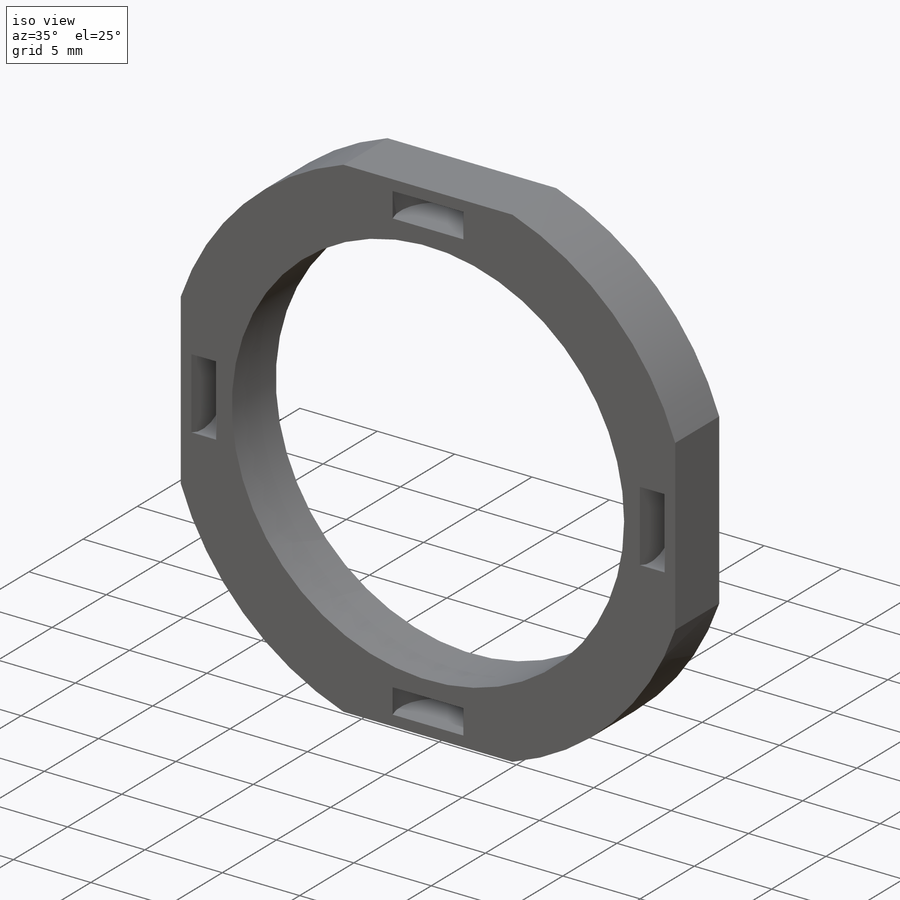
[diagram: iso view]
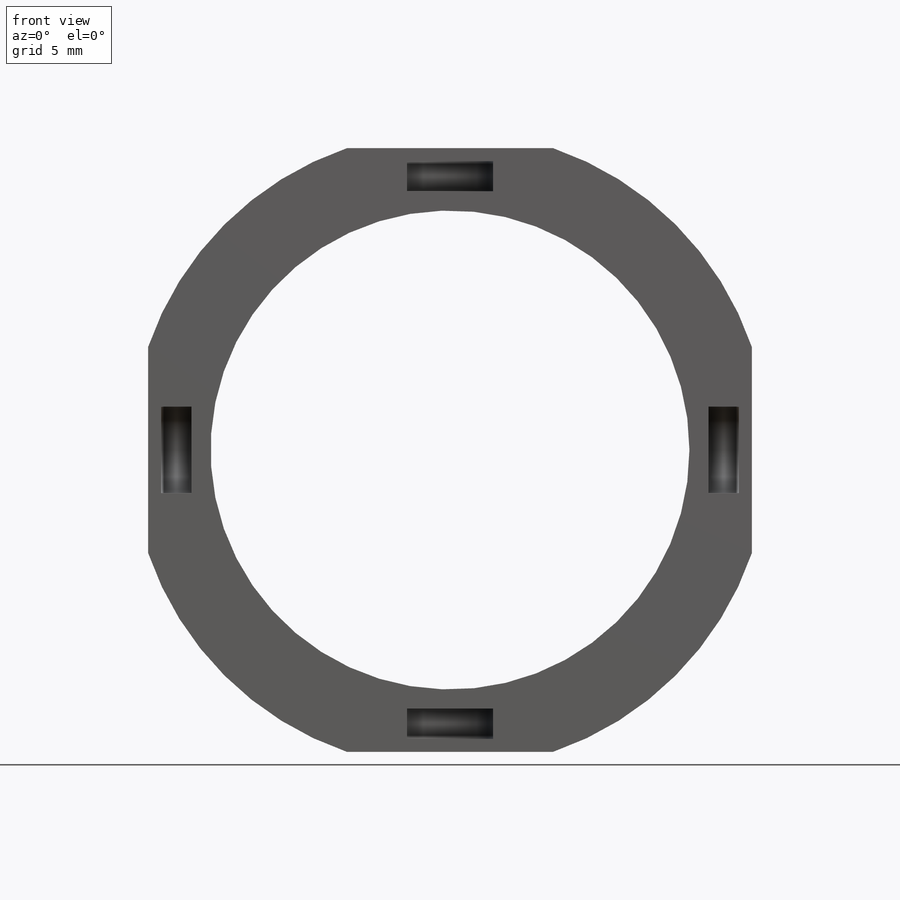
[diagram: front view]
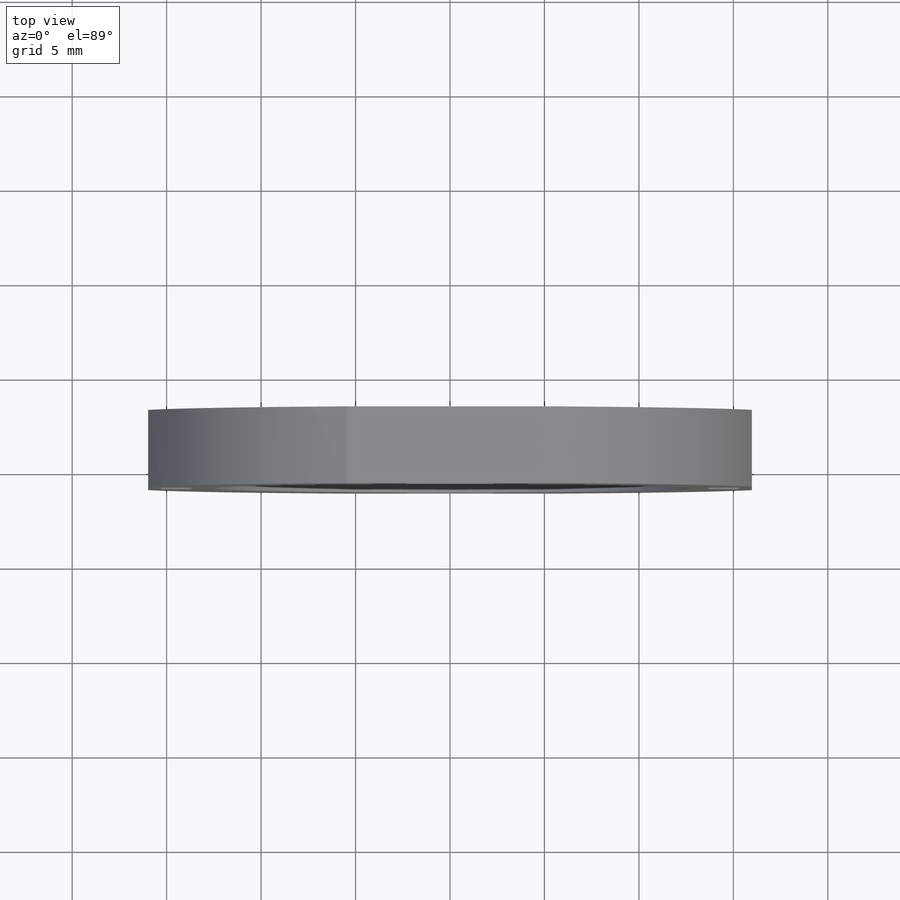
[diagram: top view]
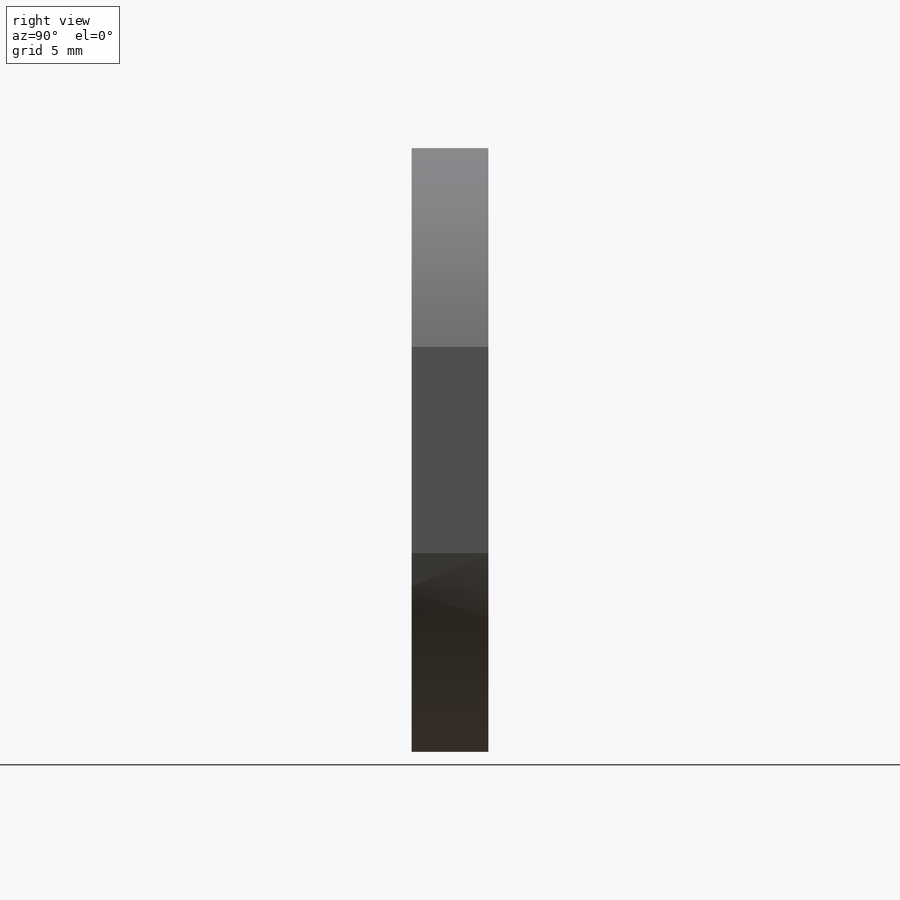
[diagram: right view]
SOLIDWORKS PART (.sldprt)
format: sldprt  version: not decoded by parser v0  size: 186,880 bytes
history: native  units: mm
features: sketch x2, material x1, extrude x1, cut_revolve x1, pattern_circular x1 (+11 scaffold rows collapsed)
feature tree (17):
  scaffold x11  (default folders/planes/origin — collapsed)
  material  "Material <not specified>"
  sketch  "Sketch1"  dims[c1.D1=9.77mm c1.D5=~23.189801mm c1.D6=9.77mm c2.D5=25.4mm c2.D1=25.3492mm c3.D5=~33.816415mm c3.D2=5.0mm c3.D3=3.302mm c3.D4=~16.171016mm c3.D6=4.0]
  extrude  "Boss-Extrude1"  Depth=1.016mm
  sketch  "Sketch3"  dims[D1=1.6002mm D2=1.016mm]
  cut_revolve  "Cut-Revolve2"  Angle=360deg
  pattern_circular  "CirPattern1"  Count=4 Angle=90deg
decode coverage: 5 of 5 modeling features carry decoded parameters
note: ~ marks probable driven/reference dimensions
note: suppression state not decoded; provenance and decode notes live in map.json
